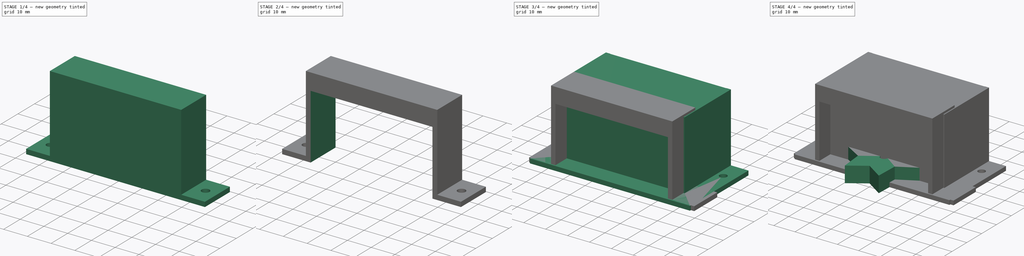
[diagram: build sequence overview — one tinted view per stage of 4, left to right]
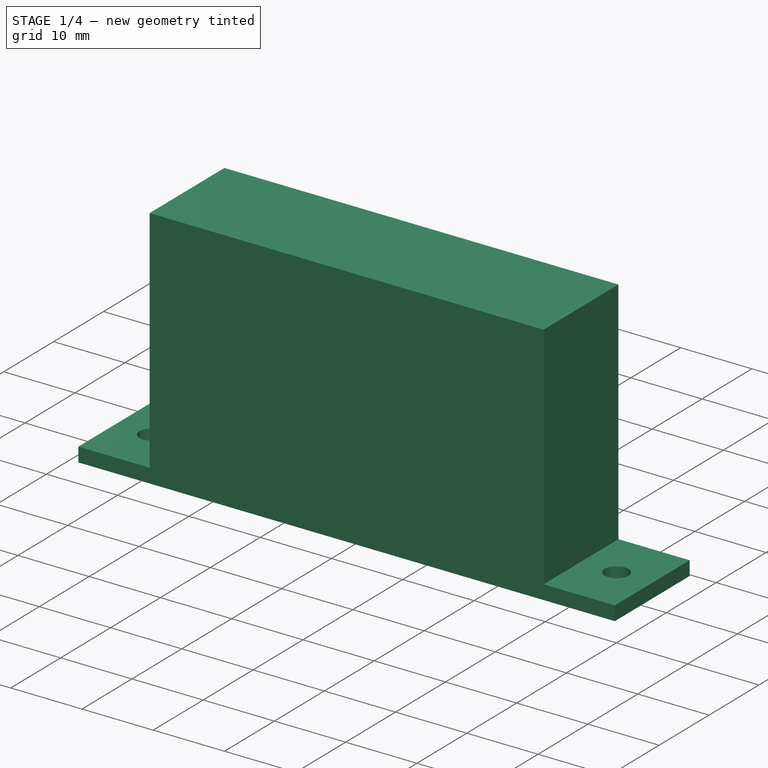
[diagram: stage 1 of 4 — iso view after this stage's code; geometry added in this stage tinted green]
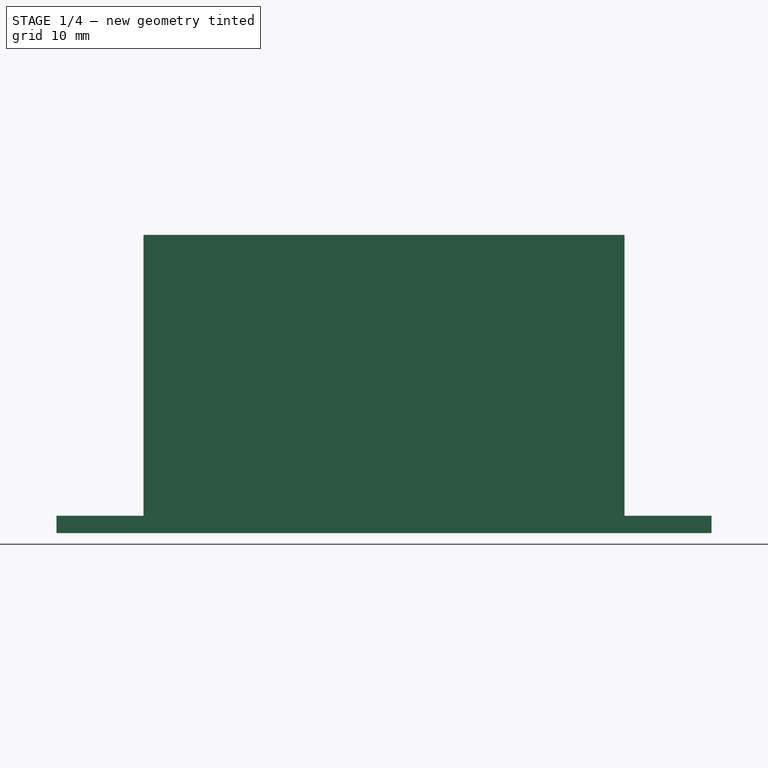
[diagram: stage 1 of 4 — front view after this stage's code; geometry added in this stage tinted green]
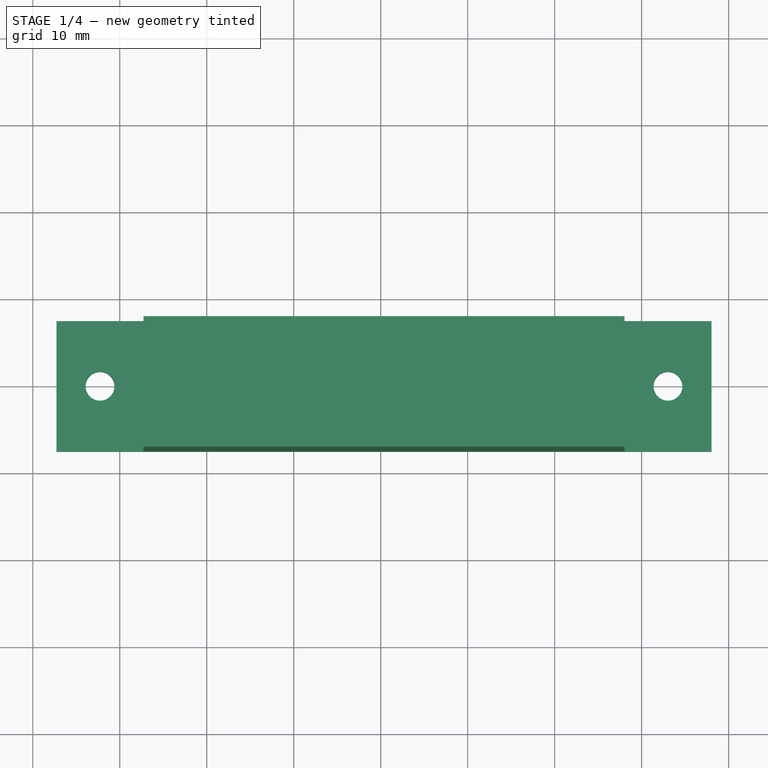
[diagram: stage 1 of 4 — top view after this stage's code; geometry added in this stage tinted green]
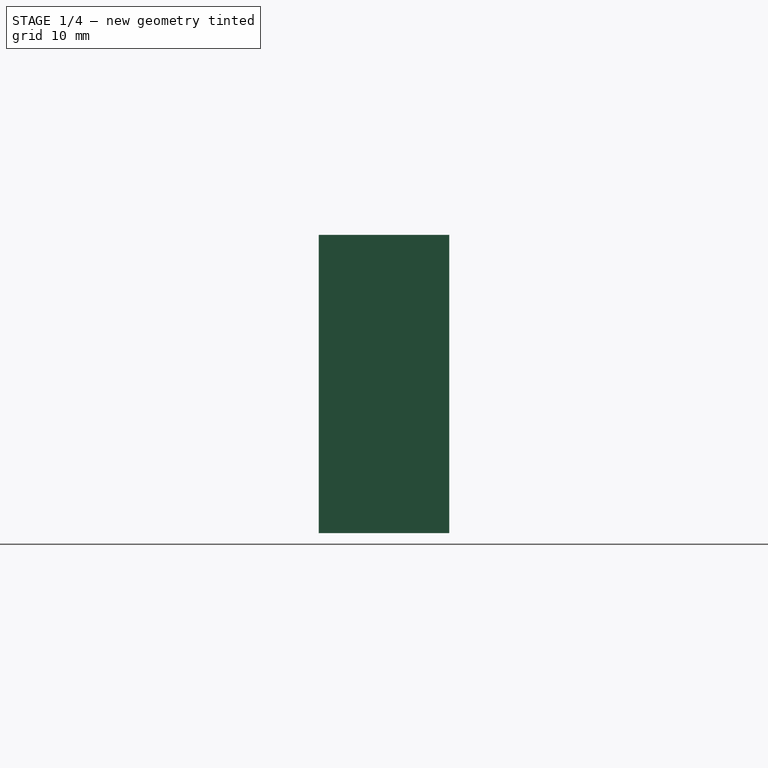
[diagram: stage 1 of 4 — right view after this stage's code; geometry added in this stage tinted green]
FCSTD DOCUMENT  (FreeCAD 0.22R35822 (Git))
Label: projeto estagio
License: All rights reserved
LicenseURL: https://en.wikipedia.org/wiki/All_rights_reserved
objects: Sketcher::SketchObject×9, PartDesign::Pad×7, PartDesign::Body×3, PartDesign::Pocket×2
note: 30 computed .brp shape members not serialized (recipe doc carries the construction recipe); baked Part::Feature solids carry a one-line shape summary decoded from their .brp

FEATURE [PartDesign::Body] Body001  label="PS_sul"
  Group = -> [Sketch002,Pad001,Sketch004,Pad002,Sketch005,Pad003]
  Origin = -> Origin001
  Tip = -> Pad003
FEATURE [Sketcher::SketchObject] Sketch006
  FullyConstrained = false
  MapMode = 5
  Support = -> [XY_Plane002]
  sketch-geometry (6):
    g0: LineSegment StartX=-37.2731 StartY=7.5 StartZ=0 EndX=38.0269 EndY=7.5 EndZ=0
    g1: LineSegment StartX=38.0269 StartY=7.5 StartZ=0 EndX=38.0269 EndY=-7.5 EndZ=0
    g2: LineSegment StartX=38.0269 StartY=-7.5 StartZ=0 EndX=-37.2731 EndY=-7.5 EndZ=0
    g3: LineSegment StartX=-37.2731 StartY=-7.5 StartZ=0 EndX=-37.2731 EndY=7.5 EndZ=0
    g4: Circle CenterX=33.0269 CenterY=-7e-16 CenterZ=0 NormalX=0 NormalY=0 NormalZ=1 AngleXU=0 Radius=1.65
    g5: Circle CenterX=-32.2731 CenterY=0 CenterZ=0 NormalX=0 NormalY=0 NormalZ=1 AngleXU=0 Radius=1.65
  constraints (16):
    c: Coincident(g0,g1)
    c: Coincident(g1,g2)
    c: Coincident(g2,g3)
    c: Coincident(g3,g0)
    c: Horizontal(g0)
    c: Horizontal(g2)
    c: Vertical(g1)
    c: Vertical(g3)
    c: DistanceY(g2,g0) = 15
    c: DistanceX(g4,g0) = 5
    c: DistanceY(g1,g4) = 7.5
    c: PointOnObject(g5,g-1)
    c: DistanceX(g0,g5) = 5
    c: Diameter(g5) = 3.3
    c: Diameter(g4) = 3.3
    c: DistanceX(g2,g1) = 75.3
FEATURE [PartDesign::Pad] Pad004
  Direction = (0,0,1)
  Length = 2
  Length2 = 10
  Profile = -> Sketch006
  ReferenceAxis = -> Sketch006 [N_Axis]
  Type = 0
FEATURE [Sketcher::SketchObject] Sketch007
  ExternalGeometry = -> [Pad004]
  FullyConstrained = true
  MapMode = 5
  Placement = pos=(0,0,2) rot=(0,0,1;0rad)
  Support = -> [Pad004]
  sketch-geometry (4):
    g0: LineSegment StartX=-27.2731 StartY=7.5 StartZ=0 EndX=28.0269 EndY=7.5 EndZ=0
    g1: LineSegment StartX=28.0269 StartY=7.5 StartZ=0 EndX=28.0269 EndY=-7.5 EndZ=0
    g2: LineSegment StartX=28.0269 StartY=-7.5 StartZ=0 EndX=-27.2731 EndY=-7.5 EndZ=0
    g3: LineSegment StartX=-27.2731 StartY=-7.5 StartZ=0 EndX=-27.2731 EndY=7.5 EndZ=0
  constraints (12):
    c: Coincident(g0,g1)
    c: Coincident(g1,g2)
    c: Coincident(g2,g3)
    c: Coincident(g3,g0)
    c: Horizontal(g0)
    c: Horizontal(g2)
    c: Vertical(g1)
    c: Vertical(g3)
    c: PointOnObject(g0,g-3)
    c: PointOnObject(g1,g-5)
    c: DistanceX(g0,g-6) = 10
    c: DistanceX(g-4,g0) = 10
FEATURE [PartDesign::Pad] Pad005
  BaseFeature = -> Pad004
  Direction = (0,0,1)
  Length = 32.3
  Length2 = 10
  Profile = -> Sketch007
  ReferenceAxis = -> Sketch007 [N_Axis]
  Type = 0
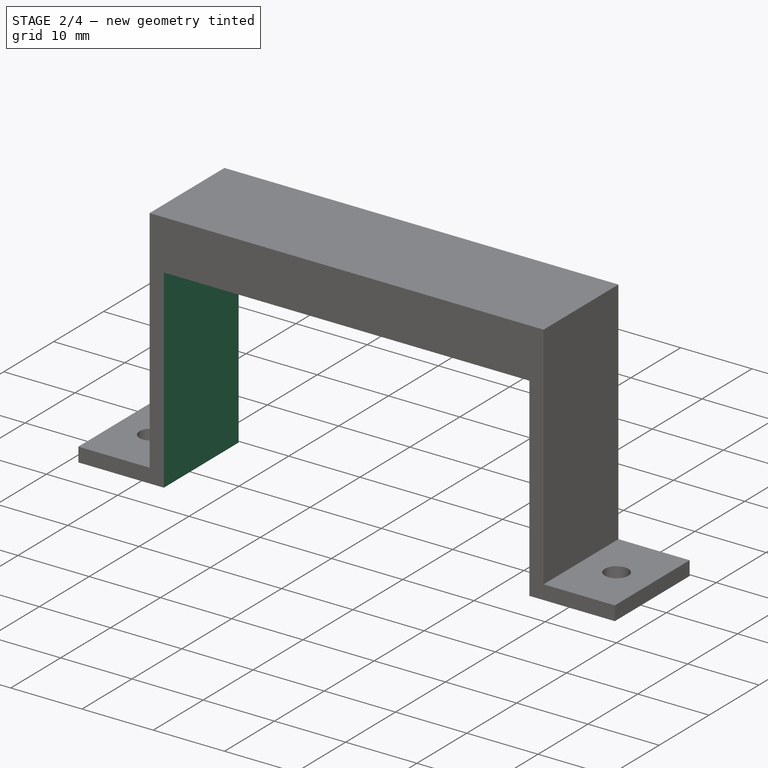
[diagram: stage 2 of 4 — iso view after this stage's code; geometry added in this stage tinted green]
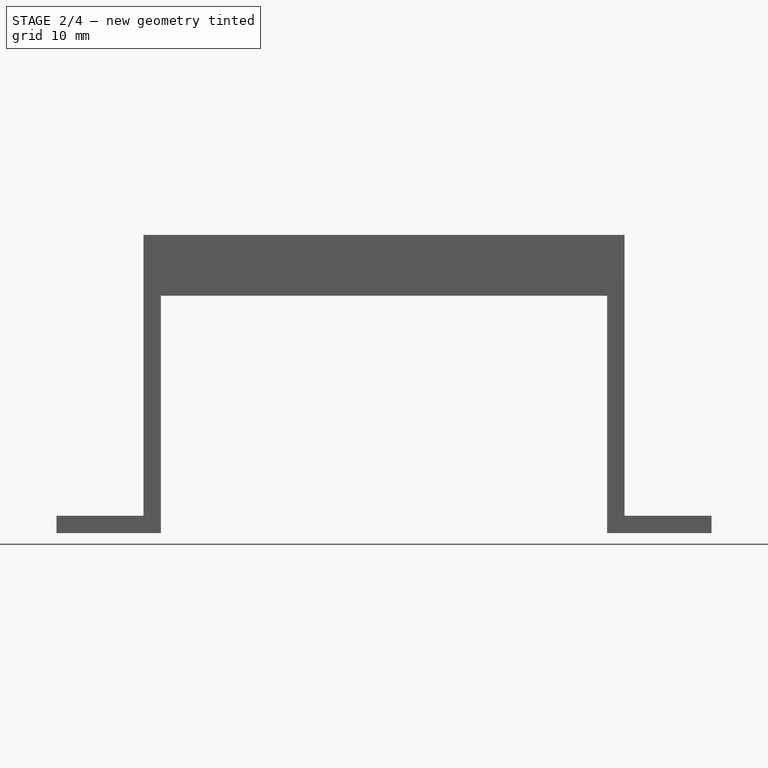
[diagram: stage 2 of 4 — front view after this stage's code; geometry added in this stage tinted green]
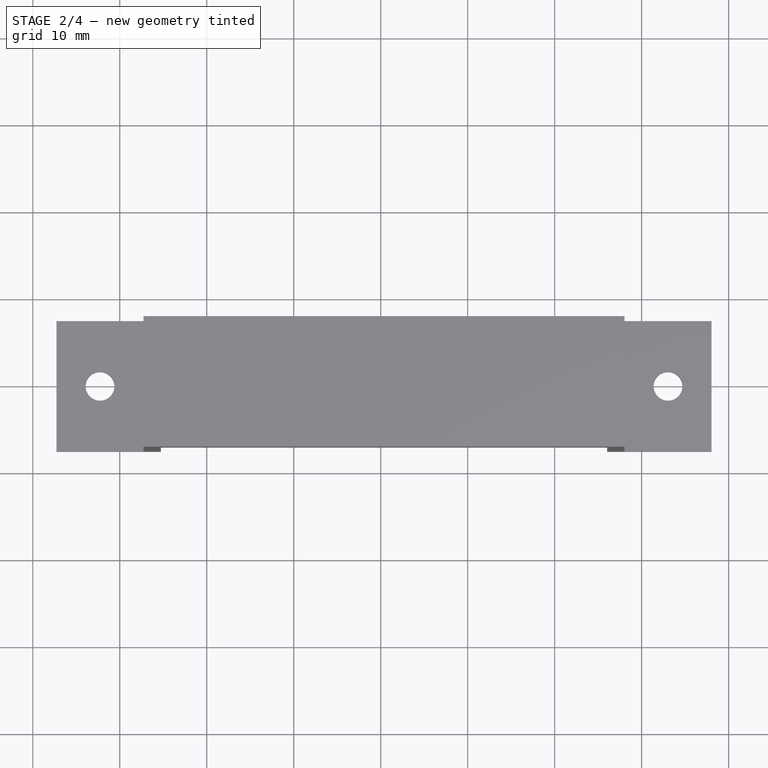
[diagram: stage 2 of 4 — top view after this stage's code; geometry added in this stage tinted green]
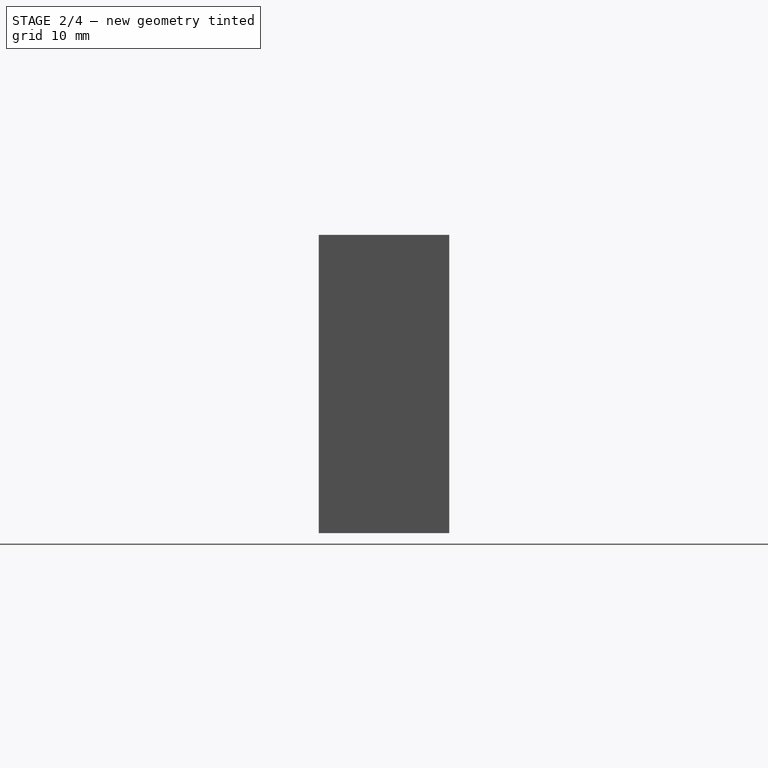
[diagram: stage 2 of 4 — right view after this stage's code; geometry added in this stage tinted green]
FEATURE [Sketcher::SketchObject] Sketch008
  ExternalGeometry = -> [Pad005]
  FullyConstrained = true
  MapMode = 5
  Placement = pos=(0,7.5,0) rot=(0,0.707107,0.707107;3.14159rad)
  Support = -> [Pad005]
  sketch-geometry (4):
    g0: LineSegment StartX=-26.0269 StartY=32.3 StartZ=0 EndX=25.2731 EndY=32.3 EndZ=0
    g1: LineSegment StartX=25.2731 StartY=32.3 StartZ=0 EndX=25.2731 EndY=0 EndZ=0
    g2: LineSegment StartX=25.2731 StartY=0 StartZ=0 EndX=-26.0269 EndY=0 EndZ=0
    g3: LineSegment StartX=-26.0269 StartY=0 StartZ=0 EndX=-26.0269 EndY=32.3 EndZ=0
  constraints (12):
    c: Coincident(g0,g1)
    c: Coincident(g1,g2)
    c: Coincident(g2,g3)
    c: Coincident(g3,g0)
    c: Horizontal(g0)
    c: Horizontal(g2)
    c: Vertical(g1)
    c: Vertical(g3)
    c: PointOnObject(g1,g-9)
    c: DistanceX(g-4,g0) = 2
    c: DistanceX(g0,g-5) = 2
    c: DistanceY(g0,g-5) = 2
FEATURE [PartDesign::Pocket] Pocket001
  BaseFeature = -> Pad005
  Direction = (0,-1,2e-16)
  Length = 5
  Length2 = 5
  Profile = -> Sketch008
  ReferenceAxis = -> Sketch008 [N_Axis]
  Type = 1
FEATURE [Sketcher::SketchObject] Sketch009
  ExternalGeometry = -> [Pocket001]
  FullyConstrained = true
  MapMode = 5
  Placement = pos=(0,7.2e-15,32.3) rot=(1,0,0;3.14159rad)
  Support = -> [Pocket001]
  sketch-geometry (4):
    g0: LineSegment StartX=-25.2731 StartY=7.5 StartZ=0 EndX=26.0269 EndY=7.5 EndZ=0
    g1: LineSegment StartX=26.0269 StartY=7.5 StartZ=0 EndX=26.0269 EndY=5.5 EndZ=0
    g2: LineSegment StartX=26.0269 StartY=5.5 StartZ=0 EndX=-25.2731 EndY=5.5 EndZ=0
    g3: LineSegment StartX=-25.2731 StartY=5.5 StartZ=0 EndX=-25.2731 EndY=7.5 EndZ=0
  constraints (11):
    c: Coincident(g0,g1)
    c: Coincident(g1,g2)
    c: Coincident(g2,g3)
    c: Coincident(g3,g0)
    c: Horizontal(g0)
    c: Horizontal(g2)
    c: Vertical(g1)
    c: Vertical(g3)
    c: Coincident(g0,g-6)
    c: PointOnObject(g1,g-4)
    c: DistanceY(g1,g0) = 2
FEATURE [PartDesign::Pad] Pad006
  BaseFeature = -> Pocket001
  Direction = (0,0,-1)
  Length = 5
  Length2 = 10
  Profile = -> Sketch009
  ReferenceAxis = -> Sketch009 [N_Axis]
  Type = 0
FEATURE [PartDesign::Body] Body002  label="PS_norte"
  Group = -> [Sketch006,Pad004,Sketch007,Pad005,Sketch008,Pocket001,Sketch009,Pad006]
  Origin = -> Origin002
  Tip = -> Pad006
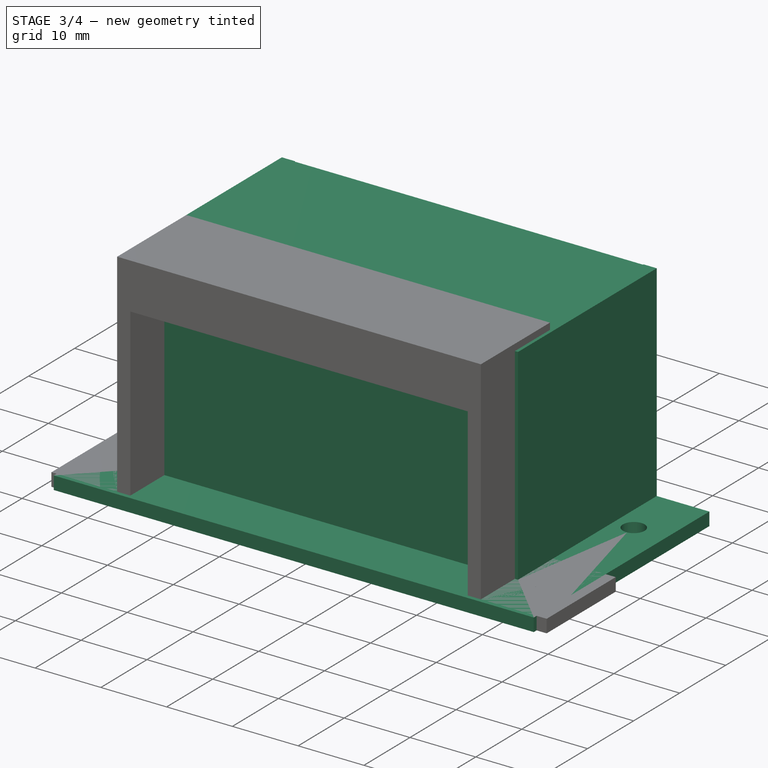
[diagram: stage 3 of 4 — iso view after this stage's code; geometry added in this stage tinted green]
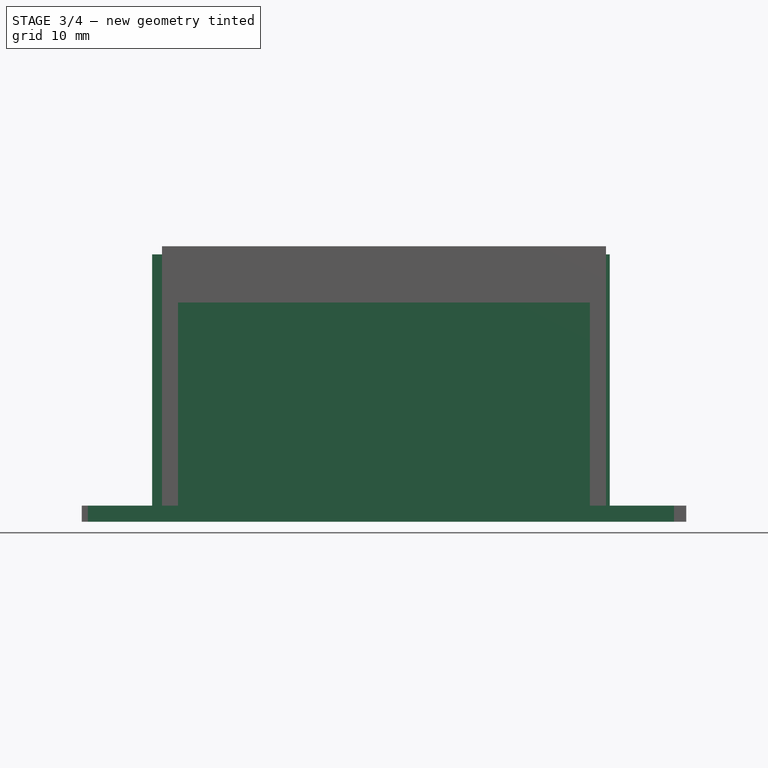
[diagram: stage 3 of 4 — front view after this stage's code; geometry added in this stage tinted green]
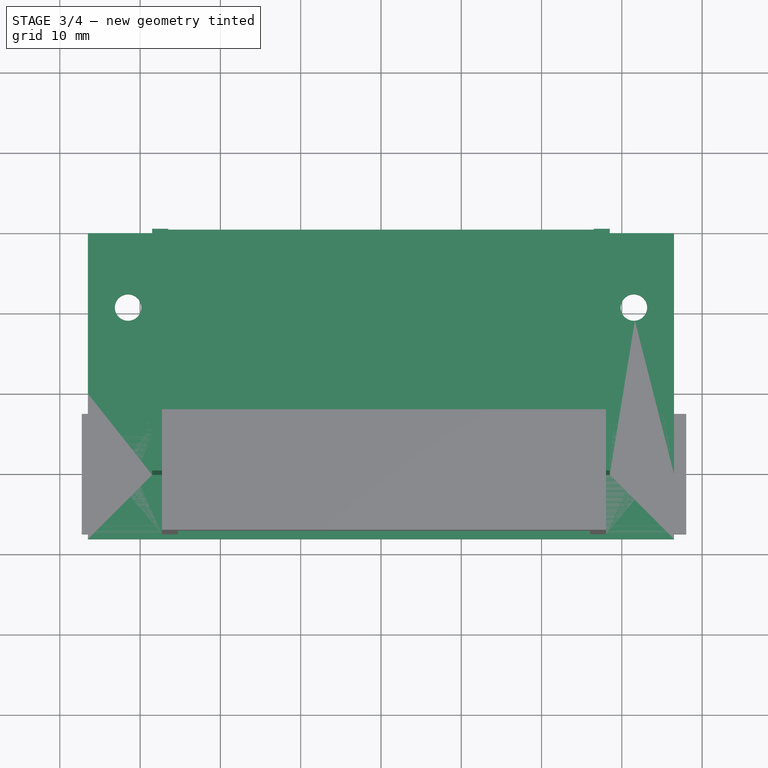
[diagram: stage 3 of 4 — top view after this stage's code; geometry added in this stage tinted green]
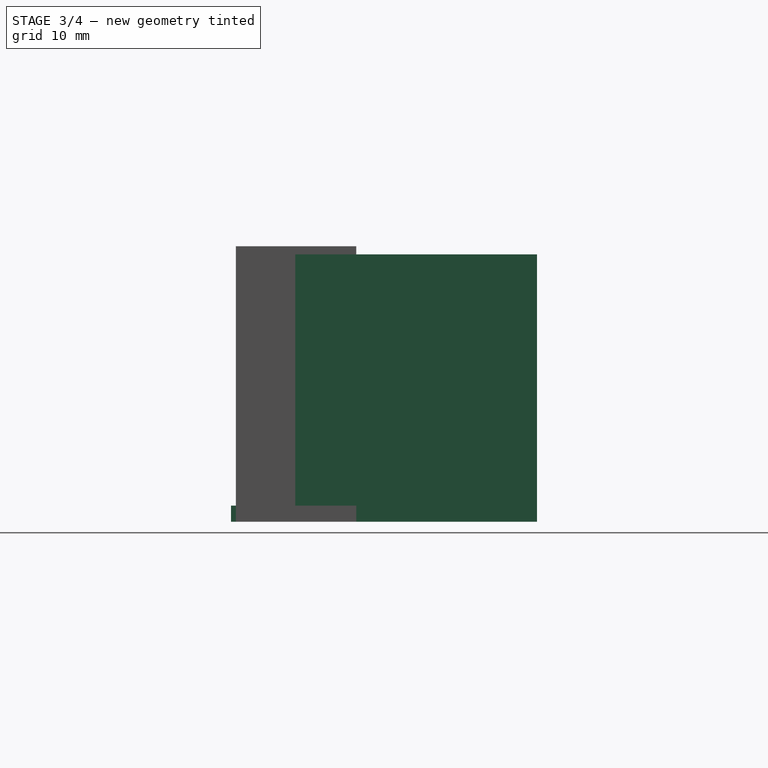
[diagram: stage 3 of 4 — right view after this stage's code; geometry added in this stage tinted green]
FEATURE [PartDesign::Body] Body  label="Pezinhos"
  Group = -> [Sketch,Pad,Sketch001,Pocket]
  Origin = -> Origin
  Tip = -> Pocket
FEATURE [Sketcher::SketchObject] Sketch002
  FullyConstrained = false
  MapMode = 5
  Support = -> [XY_Plane001]
  sketch-geometry (12):
    g0: LineSegment StartX=-26.5 StartY=1.89233 StartZ=0 EndX=-26.5 EndY=30.0094 EndZ=0
    g1: LineSegment StartX=-26.5 StartY=30.0094 StartZ=0 EndX=-36.5 EndY=30.0094 EndZ=0
    g2: LineSegment StartX=-36.5 StartY=30.0094 StartZ=0 EndX=-36.5 EndY=10.0094 EndZ=0
    g3: LineSegment StartX=-36.5 StartY=10.0094 StartZ=0 EndX=-36.5 EndY=-8.10767 EndZ=0
    g4: LineSegment StartX=-36.5 StartY=-8.10767 StartZ=0 EndX=36.5 EndY=-8.10767 EndZ=0
    g5: LineSegment StartX=36.5 StartY=-8.10767 StartZ=0 EndX=36.5 EndY=0 EndZ=0
    g6: LineSegment StartX=26.5 StartY=1.89233 StartZ=0 EndX=-26.5 EndY=1.89233 EndZ=0
    g7: LineSegment StartX=36.5 StartY=0 StartZ=0 EndX=36.5 EndY=30.0094 EndZ=0
    g8: LineSegment StartX=36.5 StartY=30.0094 StartZ=0 EndX=26.5 EndY=30.0094 EndZ=0
    g9: LineSegment StartX=26.5 StartY=30.0094 StartZ=0 EndX=26.5 EndY=1.89233 EndZ=0
    g10: Circle CenterX=-31.5 CenterY=20.7467 CenterZ=0 NormalX=0 NormalY=0 NormalZ=1 AngleXU=0 Radius=1.65
    g11: Circle CenterX=31.5 CenterY=20.7467 CenterZ=0 NormalX=0 NormalY=0 NormalZ=1 AngleXU=0 Radius=1.65
  constraints (29):
    c: Coincident(g0,g1)
    c: Coincident(g1,g2)
    c: Horizontal(g1)
    c: Vertical(g0)
    c: Vertical(g2)
    c: DistanceX(g2,g0) = 10
    c: DistanceY(g2,g1) = 20
    c: Coincident(g3,g4)
    c: Coincident(g4,g5)
    c: Vertical(g3)
    c: Vertical(g5)
    c: Horizontal(g6)
    c: DistanceX(g2,g5) = 73
    c: Coincident(g7,g8)
    c: Coincident(g8,g9)
    c: Vertical(g7)
    c: Vertical(g9)
    c: Horizontal(g8)
    c: Coincident(g7,g5)
    c: DistanceX(g9,g5) = 10
    c: Coincident(g9,g6)
    c: Coincident(g6,g0)
    c: Coincident(g2,g3)
    c: Symmetric(g3,g4,g-2)
    c: DistanceY(g4,g6) = 10
    c: Diameter(g10) = 3.3
    c: DistanceX(g10,g0) = 5
    c: Diameter(g11) = 3.3
    c: DistanceX(g6,g11) = 5
FEATURE [PartDesign::Pad] Pad001
  Direction = (0,0,1)
  Length = 2
  Length2 = 10
  Profile = -> Sketch002
  ReferenceAxis = -> Sketch002 [N_Axis]
  Type = 0
FEATURE [Sketcher::SketchObject] Sketch004
  ExternalGeometry = -> [Pad001]
  FullyConstrained = true
  MapMode = 5
  Placement = pos=(0,0,2) rot=(0,0,1;0rad)
  Support = -> [Pad001]
  sketch-geometry (8):
    g0: LineSegment StartX=-26.5 StartY=30.0094 StartZ=0 EndX=-26.5 EndY=1.89233 EndZ=0
    g1: LineSegment StartX=26.5 StartY=1.89233 StartZ=0 EndX=26.5 EndY=30.0094 EndZ=0
    g2: LineSegment StartX=26.5 StartY=1.89233 StartZ=0 EndX=-26.5 EndY=1.89233 EndZ=0
    g3: LineSegment StartX=-28.5 StartY=30.0094 StartZ=0 EndX=-28.5 EndY=-0.107668 EndZ=0
    g4: LineSegment StartX=28.5 StartY=30.0094 StartZ=0 EndX=28.5 EndY=-0.107668 EndZ=0
    g5: LineSegment StartX=28.5 StartY=-0.107668 StartZ=0 EndX=-28.5 EndY=-0.107668 EndZ=0
    g6: LineSegment StartX=-28.5 StartY=30.0094 StartZ=0 EndX=-26.5 EndY=30.0094 EndZ=0
    g7: LineSegment StartX=26.5 StartY=30.0094 StartZ=0 EndX=28.5 EndY=30.0094 EndZ=0
  constraints (20):
    c: Coincident(g0,g-4)
    c: Coincident(g0,g-4)
    c: Coincident(g1,g-5)
    c: Coincident(g1,g-5)
    c: Coincident(g2,g1)
    c: Coincident(g2,g0)
    c: Vertical(g3)
    c: Vertical(g4)
    c: Coincident(g5,g3)
    c: Horizontal(g5)
    c: Coincident(g6,g3)
    c: Coincident(g6,g0)
    c: Coincident(g7,g1)
    c: Coincident(g7,g4)
    c: Horizontal(g6)
    c: DistanceX(g6,g6) = 2
    c: DistanceY(g3,g0) = 2
    c: Horizontal(g7)
    c: DistanceX(g7,g7) = 2
    c: Coincident(g4,g5)
FEATURE [PartDesign::Pad] Pad002
  BaseFeature = -> Pad001
  Direction = (0,0,1)
  Length = 31.3
  Length2 = 10
  Profile = -> Sketch004
  ReferenceAxis = -> Sketch004 [N_Axis]
  Type = 0
FEATURE [Sketcher::SketchObject] Sketch005
  ExternalGeometry = -> [Pad002]
  FullyConstrained = true
  MapMode = 5
  Placement = pos=(0,1.89233,0) rot=(0,0.707107,0.707107;3.14159rad)
  Support = -> [Pad002]
  sketch-geometry (4):
    g0: LineSegment StartX=-26.5 StartY=33.3 StartZ=0 EndX=26.5 EndY=33.3 EndZ=0
    g1: LineSegment StartX=26.5 StartY=33.3 StartZ=0 EndX=26.5 EndY=31.3 EndZ=0
    g2: LineSegment StartX=26.5 StartY=31.3 StartZ=0 EndX=-26.5 EndY=31.3 EndZ=0
    g3: LineSegment StartX=-26.5 StartY=31.3 StartZ=0 EndX=-26.5 EndY=33.3 EndZ=0
  constraints (10):
    c: Coincident(g0,g1)
    c: Coincident(g1,g2)
    c: Coincident(g2,g3)
    c: Coincident(g3,g0)
    c: Horizontal(g2)
    c: Vertical(g1)
    c: Vertical(g3)
    c: Coincident(g0,g-3)
    c: Coincident(g0,g-3)
    c: DistanceY(g1,g1) = 2
FEATURE [PartDesign::Pad] Pad003
  BaseFeature = -> Pad002
  Direction = (0,1,-2e-16)
  Length = 28
  Length2 = 10
  Profile = -> Sketch005
  ReferenceAxis = -> Sketch005 [N_Axis]
  Type = 0
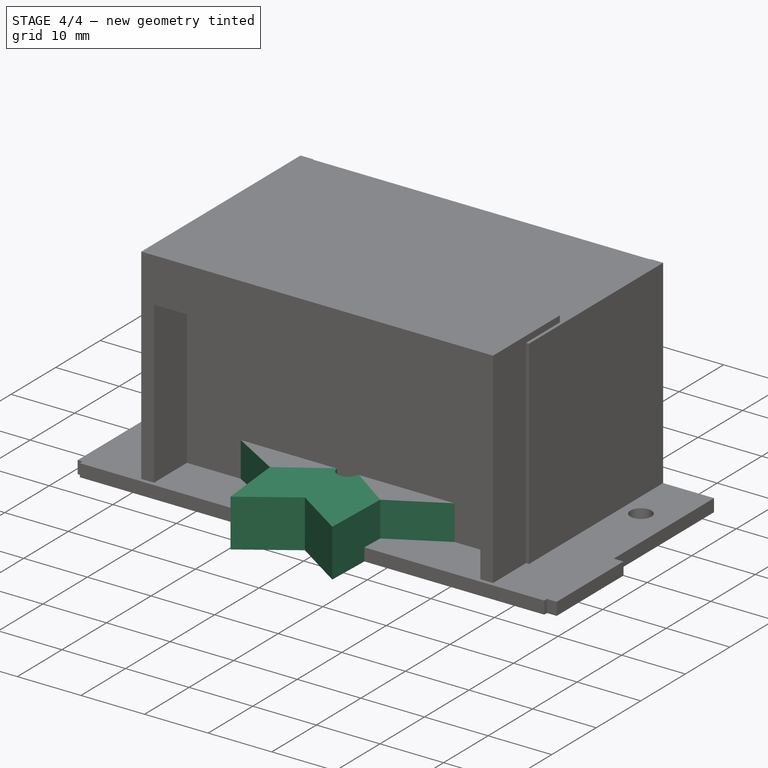
[diagram: stage 4 of 4 — iso view after this stage's code; geometry added in this stage tinted green]
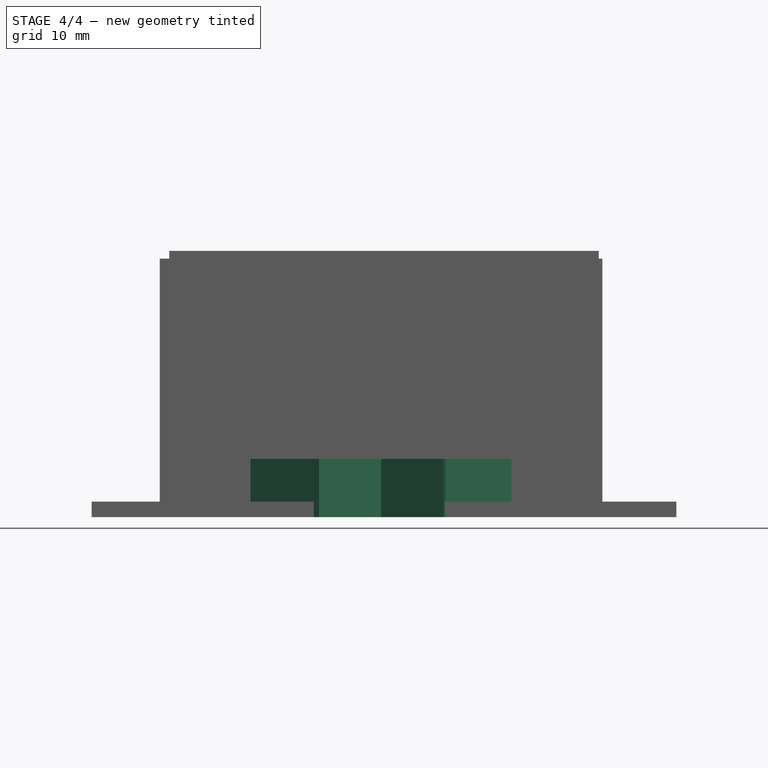
[diagram: stage 4 of 4 — front view after this stage's code; geometry added in this stage tinted green]
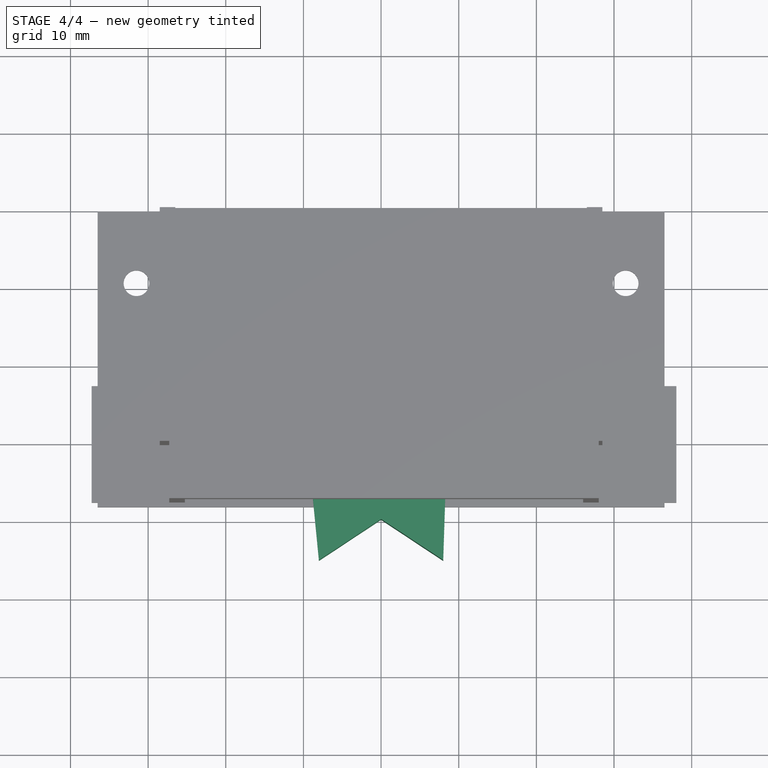
[diagram: stage 4 of 4 — top view after this stage's code; geometry added in this stage tinted green]
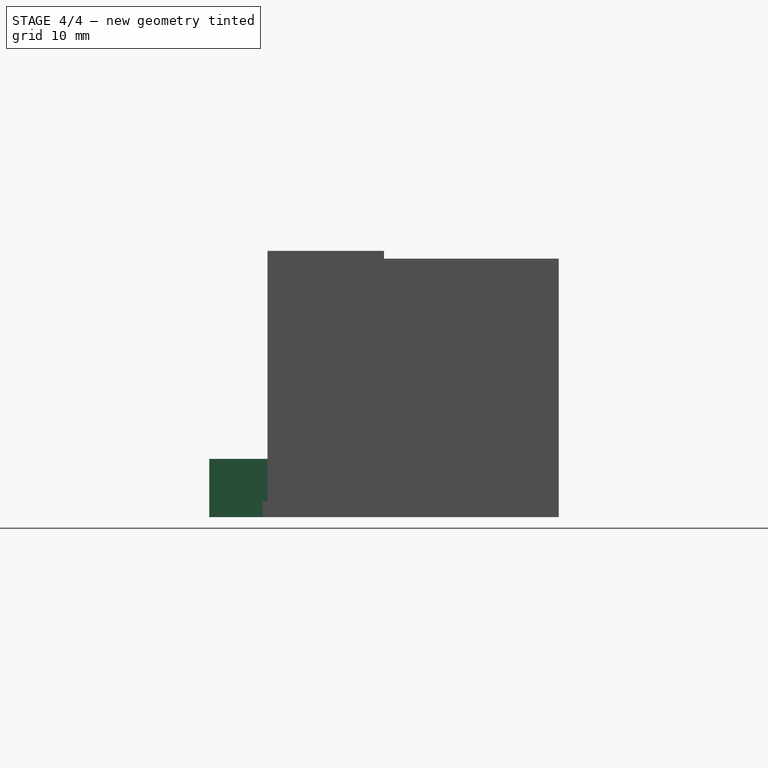
[diagram: stage 4 of 4 — right view after this stage's code; geometry added in this stage tinted green]
FEATURE [Sketcher::SketchObject] Sketch  label="base"
  FullyConstrained = false
  MapMode = 5
  Support = -> [XY_Plane]
  sketch-geometry (15):
    g0: LineSegment StartX=8 StartY=-15 StartZ=0 EndX=8.33333 EndY=-4.71297 EndZ=0
    g1: LineSegment StartX=8 StartY=15 StartZ=0 EndX=0 EndY=10.2894 EndZ=0
    g2: LineSegment StartX=-17 StartY=-5.48969e-05 StartZ=0 EndX=-9 EndY=-4.71297 EndZ=0
    g3: Circle CenterX=0 CenterY=0 CenterZ=0 NormalX=0 NormalY=0 NormalZ=1 AngleXU=0 Radius=17
    g4: LineSegment StartX=-8 StartY=-15 StartZ=0 EndX=0 EndY=-9.71057 EndZ=0
    g5: LineSegment StartX=17 StartY=9e-16 StartZ=0 EndX=8.33333 EndY=4.38779 EndZ=0
    g6: LineSegment StartX=-8 StartY=15 StartZ=0 EndX=-9 EndY=4.38779 EndZ=0
    g7: Circle CenterX=0 CenterY=0 CenterZ=0 NormalX=0 NormalY=0 NormalZ=1 AngleXU=0 Radius=17
    g8: LineSegment StartX=-9 StartY=-4.71297 StartZ=0 EndX=-8 EndY=-15 EndZ=0
    g9: LineSegment StartX=0 StartY=10.2894 StartZ=0 EndX=-8 EndY=15 EndZ=0
    g10: LineSegment StartX=-9 StartY=4.38779 StartZ=0 EndX=-17 EndY=-5.48969e-05 EndZ=0
    g11: LineSegment StartX=0 StartY=-9.71057 StartZ=0 EndX=8 EndY=-15 EndZ=0
    g12: LineSegment StartX=8.33333 StartY=-4.71297 StartZ=0 EndX=17 EndY=9e-16 EndZ=0
    g13: LineSegment StartX=8.33333 StartY=4.38779 StartZ=0 EndX=8 EndY=15 EndZ=0
    g14: Circle CenterX=0 CenterY=0 CenterZ=0 NormalX=0 NormalY=0 NormalZ=1 AngleXU=0 Radius=1.65
  constraints (35):
    c: Coincident(g13,g1)
    c: Coincident(g10,g2)
    c: Coincident(g11,g0)
    c: PointOnObject(g13,g3)
    c: PointOnObject(g10,g3)
    c: Coincident(g3,g-1)
    c: Symmetric(g0,g13,g-1)
    c: DistanceX(g10,g0) = 25
    c: Coincident(g12,g5)
    c: Coincident(g9,g6)
    c: Coincident(g8,g4)
    c: PointOnObject(g12,g7)
    c: PointOnObject(g9,g7)
    c: PointOnObject(g8,g7)
    c: Coincident(g7,g3)
    c: PointOnObject(g8,g3)
    c: Coincident(g1,g9)
    c: Coincident(g10,g6)
    c: Coincident(g2,g8)
    c: Coincident(g4,g11)
    c: Coincident(g0,g12)
    c: Coincident(g13,g5)
    c: Distance(g1,g4) = 20
    c: DistanceX(g4,g3) = 0
    c: DistanceX(g3,g1) = 0
    c: DistanceX(g2,g3) = 9
    c: DistanceX(g6,g3) = 9
    c: DistanceY(g0,g6) = 30
    c: DistanceY(g0,g4) = 0
    c: DistanceY(g5,g3) = 0
    c: DistanceY(g3,g1) = 15
    c: DistanceY(g0,g2) = 0
    c: DistanceY(g5,g6) = 0
    c: Coincident(g14,g3)
    c: Diameter(g14) = 3.3
FEATURE [PartDesign::Pad] Pad
  Direction = (0,0,1)
  Length = 7.5
  Length2 = 10
  Profile = -> Sketch
  ReferenceAxis = -> Sketch [N_Axis]
  Type = 0
FEATURE [Sketcher::SketchObject] Sketch001  label="porca"
  FullyConstrained = true
  MapMode = 5
  Placement = pos=(0,0,0) rot=(1,0,0;3.14159rad)
  Support = -> [Pad]
  sketch-geometry (7):
    g0: LineSegment StartX=1.81865 StartY=-3.15 StartZ=0 EndX=3.63731 EndY=0 EndZ=0
    g1: LineSegment StartX=3.63731 StartY=0 StartZ=0 EndX=1.81865 EndY=3.15 EndZ=0
    g2: LineSegment StartX=1.81865 StartY=3.15 StartZ=0 EndX=-1.81865 EndY=3.15 EndZ=0
    g3: LineSegment StartX=-1.81865 StartY=3.15 StartZ=0 EndX=-3.63731 EndY=0 EndZ=0
    g4: LineSegment StartX=-3.63731 StartY=2e-16 StartZ=0 EndX=-1.81865 EndY=-3.15 EndZ=0
    g5: LineSegment StartX=-1.81865 StartY=-3.15 StartZ=0 EndX=1.81865 EndY=-3.15 EndZ=0
    g6: Circle CenterX=0 CenterY=0 CenterZ=0 NormalX=0 NormalY=0 NormalZ=1 AngleXU=0 Radius=3.63731
  constraints (17):
    c: Coincident(g0,g1)
    c: Coincident(g1,g2)
    c: Coincident(g2,g3)
    c: Coincident(g3,g4)
    c: Coincident(g4,g5)
    c: Coincident(g5,g0)
    c: Equal(g0, g1-g5) x5
    c: PointOnObject(g0,g6)
    c: PointOnObject(g1,g6)
    c: PointOnObject(g2,g6)
    c: PointOnObject(g3,g6)
    c: PointOnObject(g4,g6)
    c: PointOnObject(g5,g6)
    c: DistanceX(g-1,g6) = 0
    c: DistanceY(g6,g0) = 0
    c: DistanceY(g6,g-1) = 0
    c: DistanceY(g0,g1) = 6.3
FEATURE [PartDesign::Pocket] Pocket
  BaseFeature = -> Pad
  Direction = (0,0,1)
  Length = 2.4
  Length2 = 5
  Profile = -> Sketch001
  ReferenceAxis = -> Sketch001 [N_Axis]
  Type = 0
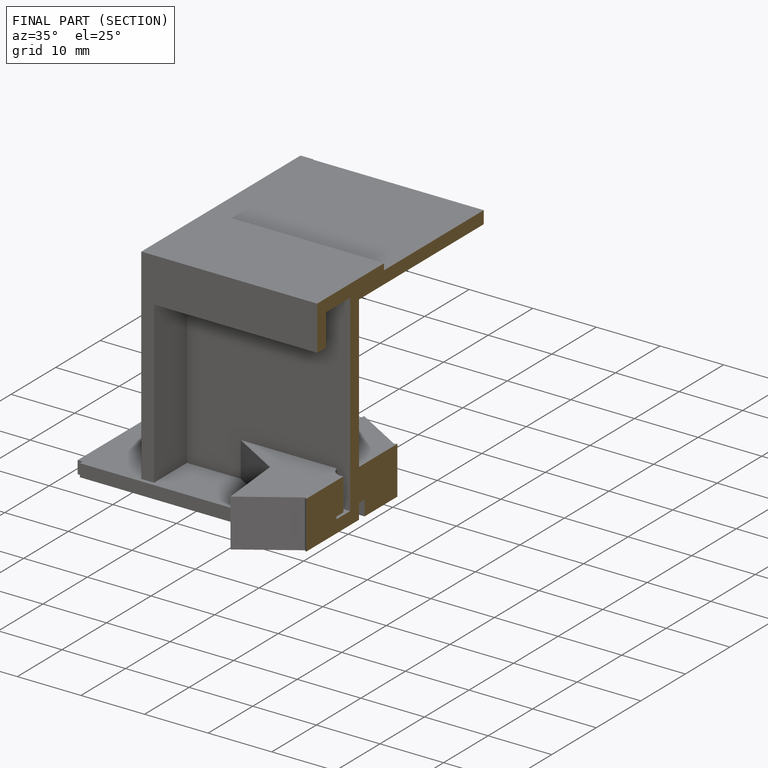
[diagram: finished part — half-section view (interior)]
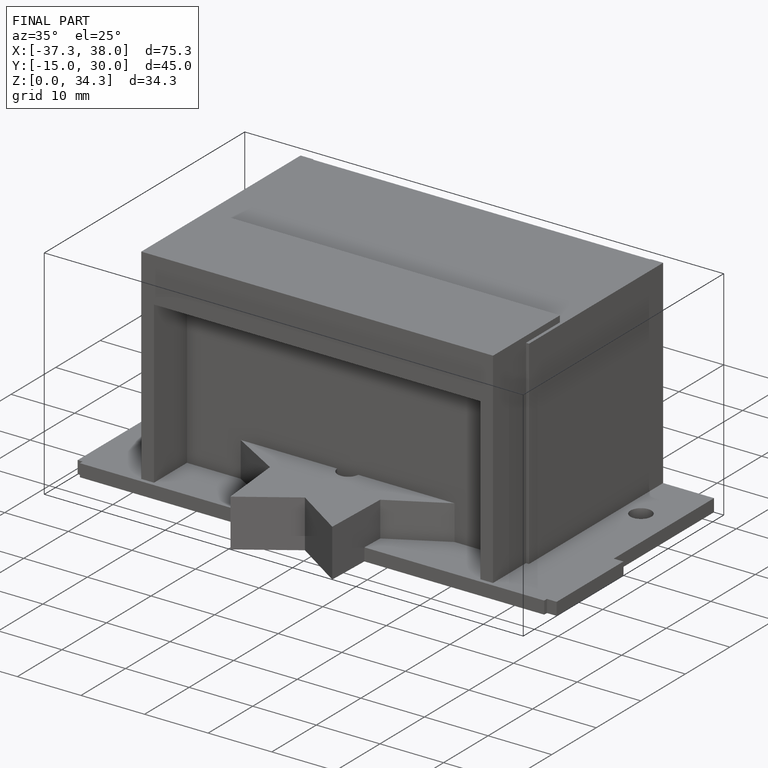
[diagram: finished part — iso view with bounding-box wireframe]
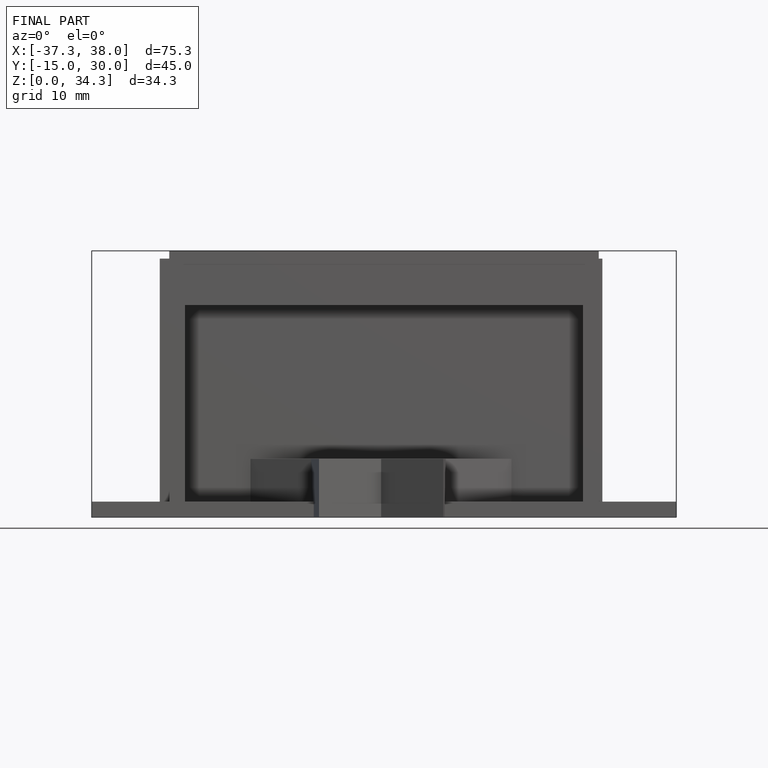
[diagram: finished part — front view with bounding-box wireframe]
